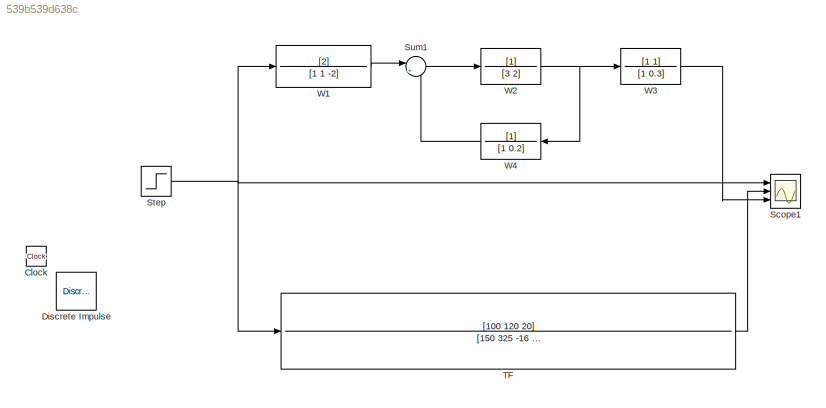
MODEL slx_539b539d638c
KIND model
CONFIG AbsTol = auto
CONFIG EnableMultiTasking = off
CONFIG FixedStep = auto
CONFIG MaxStep = auto
CONFIG MinStep = auto
CONFIG RelTol = 1e-3
CONFIG SampleTimeConstraint = Unconstrained
CONFIG Solver = VariableStepAuto
CONFIG SolverName = VariableStepAuto
CONFIG StartTime = 0.0
CONFIG StopTime = 10.0
BLOCK [Clock] Clock
BLOCK [Reference] Discrete Impulse  REF=dspsrcs4/Discrete 
Impulse
  Ports = [0, 1]
  SourceBlock = dspsrcs4/Discrete \nImpulse
  SourceProductBaseCode = DS
  SourceProductName = DSP System Toolbox
  SourceType = Discrete Impulse
BLOCK [Scope] Scope1
  Floating = off
  NumInputPorts = 3
  Ports = [3]
  ScopeSpecificationString = Simulink.scopes.TimeScopeBlockCfg('CurrentConfiguration', extmgr.ConfigurationSet(extmgr.Configuration('Core','General UI',true),extmgr.Configuration('Core','Source UI',true),extmgr.Configuration('Sources','WiredSimulink',true,'DataLoggingVariableName','ScopeData1'),extmgr.Configuration('Visuals','Time Domain',true,'SerializedDisplays',{struct('MinYLimReal','-306.00937','MaxYLimReal','2754.08437',...<+1402ch>
BLOCK [Step] Step
  After = 10
  SampleTime = 0
  Time = 0.5
  VectorParams1D = off
  ZeroCross = off
BLOCK [Sum] Sum1
  IconShape = round
  InputSameDT = off
  Inputs = |+-
  OutDataTypeStr = Inherit: Inherit via internal rule
  Ports = [2, 1]
  SaturateOnIntegerOverflow = off
BLOCK [TransferFcn] TF
  Denominator = [150 325 -16 -220 -197 -42]
  Numerator = [100 120 20]
BLOCK [TransferFcn] W1
  Denominator = [1 1 -2]
  Numerator = [2]
BLOCK [TransferFcn] W2
  Denominator = [3 2]
BLOCK [TransferFcn] W3
  Denominator = [1 0.3]
  Numerator = [1 1]
BLOCK [TransferFcn] W4
  Denominator = [1 0.2]
NET Step:1 -> Scope1:1, TF:1, W1:1
LINE Sum1:1 -> W2:1
LINE TF:1 -> Scope1:2
LINE W1:1 -> Sum1:1
NET W2:1 -> W3:1, W4:1
LINE W3:1 -> Scope1:3
LINE W4:1 -> Sum1:2
note: NET lines group one-source signal fan-out (src -> all destinations, sorted); 1:1 wires keep LINE
